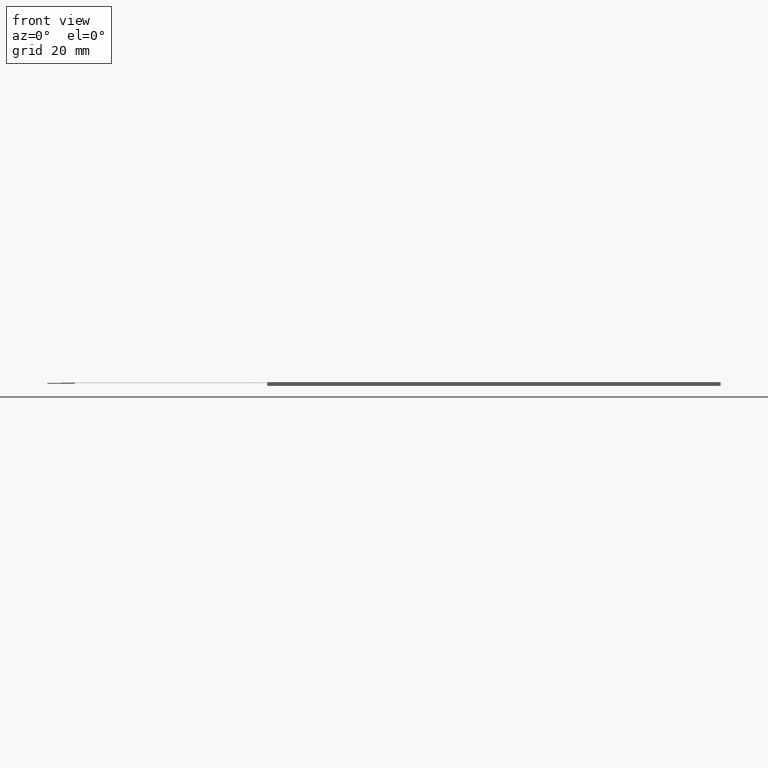
[diagram: clean part render]
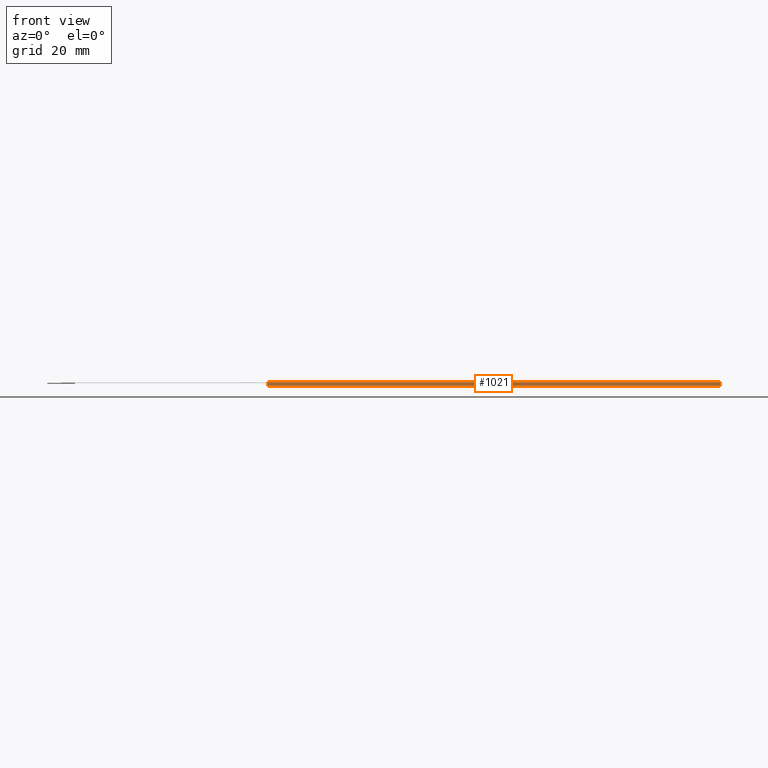
[diagram: same view with one face highlighted and labeled with its STEP entity id]
A machine part, front view. The second image highlights one B-rep face of the part: STEP entity #1021.
In plain terms, the highlighted planar face has unit normal (0, -1, 0).
Its self-contained STEP definition (entity closure, byte-faithful):
#89=PLANE('',#1104);
#140=FACE_OUTER_BOUND('',#194,.T.);
#194=EDGE_LOOP('',(#949,#950,#951,#952));
#315=LINE('',#1625,#441);
#319=LINE('',#1632,#445);
#320=LINE('',#1635,#446);
#321=LINE('',#1636,#447);
#441=VECTOR('',#1341,10.);
#445=VECTOR('',#1347,10.);
#446=VECTOR('',#1350,10.);
#447=VECTOR('',#1351,10.);
#549=VERTEX_POINT('',#1622);
#550=VERTEX_POINT('',#1624);
#552=VERTEX_POINT('',#1630);
#553=VERTEX_POINT('',#1634);
#683=EDGE_CURVE('',#549,#550,#315,.T.);
#687=EDGE_CURVE('',#549,#552,#319,.T.);
#688=EDGE_CURVE('',#553,#552,#320,.T.);
#689=EDGE_CURVE('',#550,#553,#321,.T.);
#949=ORIENTED_EDGE('',*,*,#683,.F.);
#950=ORIENTED_EDGE('',*,*,#687,.T.);
#951=ORIENTED_EDGE('',*,*,#688,.F.);
#952=ORIENTED_EDGE('',*,*,#689,.F.);
#1021=ADVANCED_FACE('',(#140),#89,.T.);
#1104=AXIS2_PLACEMENT_3D('',#1633,#1348,#1349);
#1341=DIRECTION('',(1.,1.07657990266682E-16,0.));
#1347=DIRECTION('',(0.,0.,-1.));
#1348=DIRECTION('center_axis',(1.07657990266682E-16,-1.,0.));
#1349=DIRECTION('ref_axis',(-1.,-1.07657990266682E-16,0.));
#1350=DIRECTION('',(-1.,-1.07657990266682E-16,0.));
#1351=DIRECTION('',(0.,0.,-1.));
#1622=CARTESIAN_POINT('',(-83.3,-51.32,0.));
#1624=CARTESIAN_POINT('',(81.7,-51.32,0.));
#1625=CARTESIAN_POINT('',(-83.3,-51.32,0.));
#1630=CARTESIAN_POINT('',(-83.3,-51.32,-1.4));
#1632=CARTESIAN_POINT('',(-83.3,-51.32,0.));
#1633=CARTESIAN_POINT('Origin',(81.7,-51.32,0.));
#1634=CARTESIAN_POINT('',(81.7,-51.32,-1.4));
#1635=CARTESIAN_POINT('',(-83.3,-51.32,-1.4));
#1636=CARTESIAN_POINT('',(81.7,-51.32,0.));